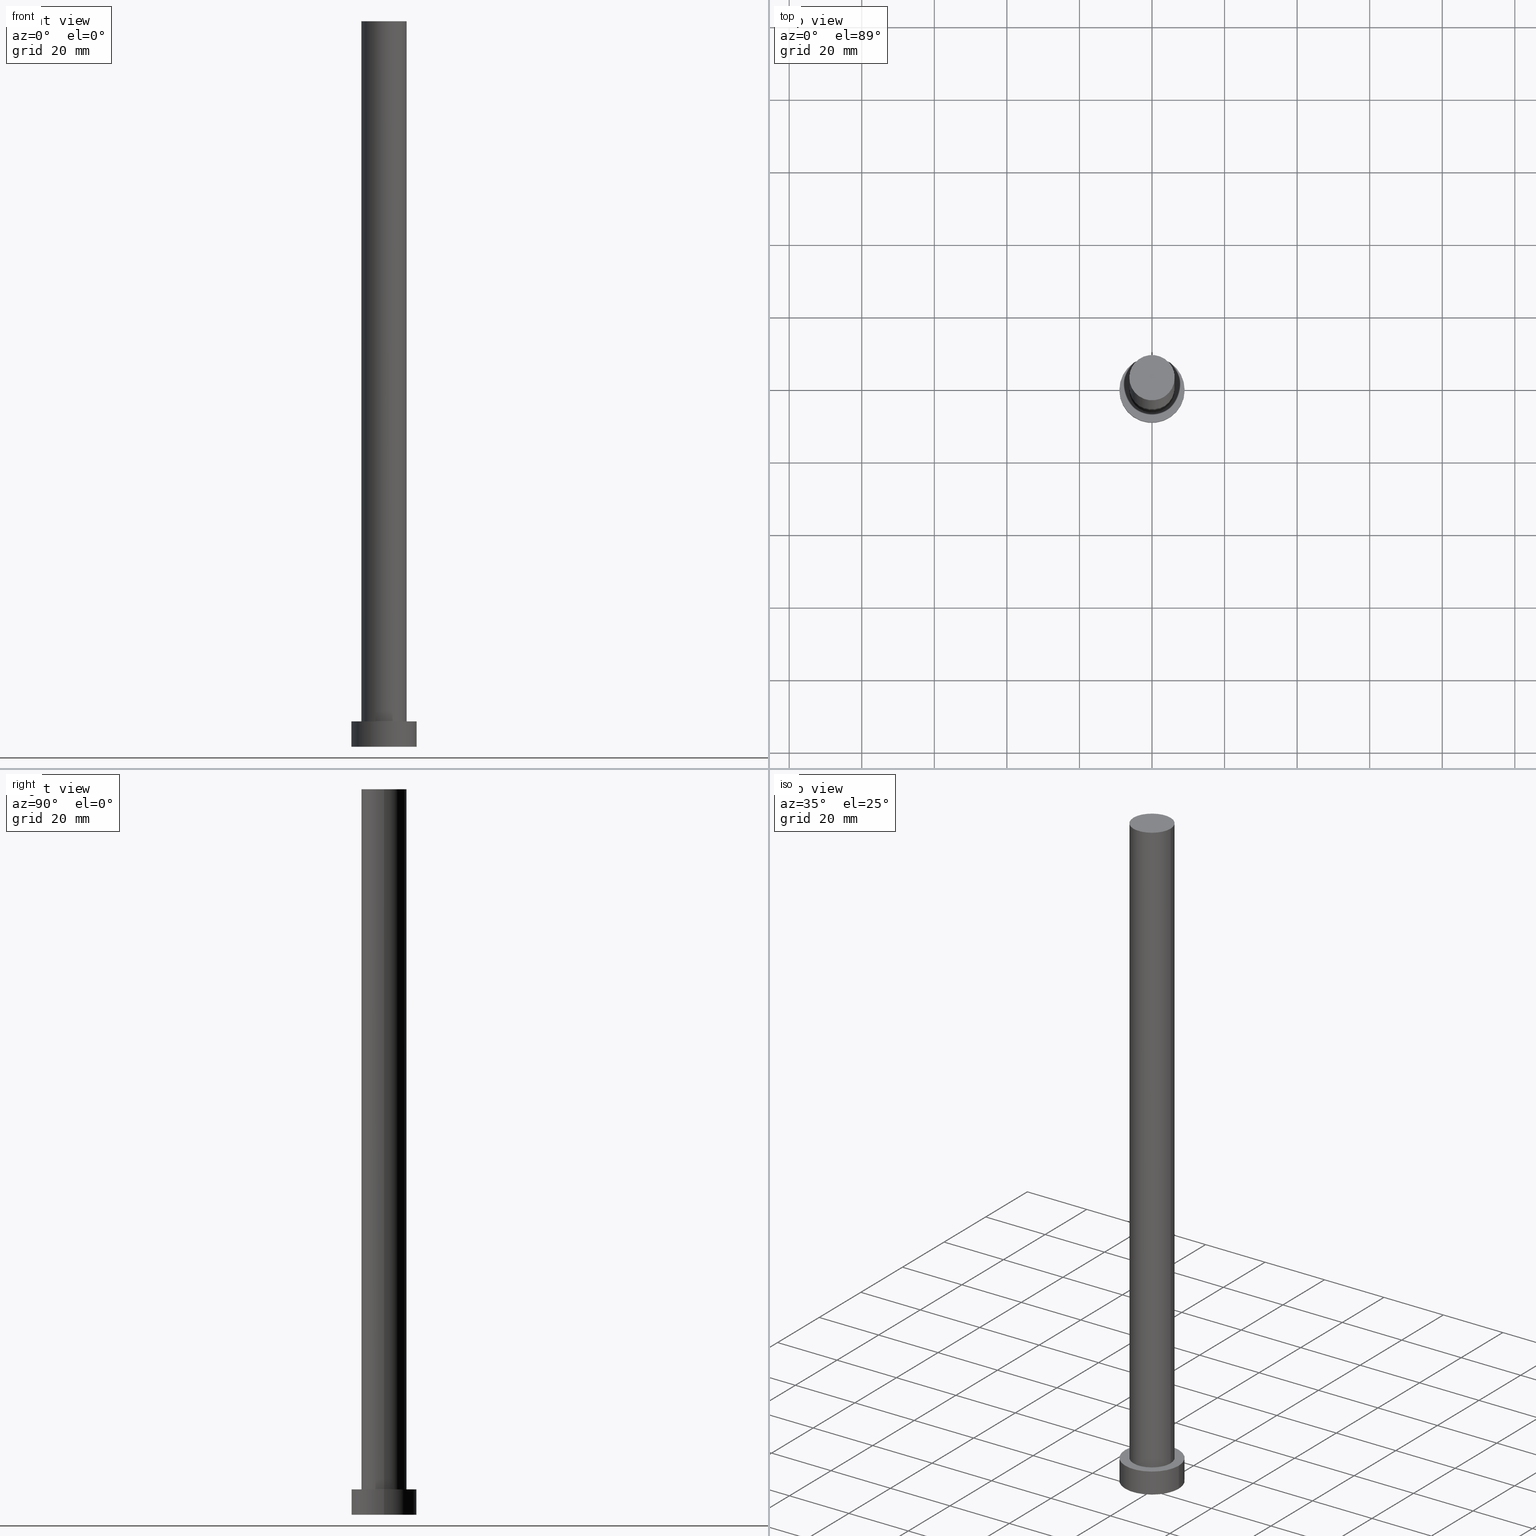
[diagram: canonical four-view strip — front | top / right | iso, engineering-drawing reading convention]
A machine part, canonical four-view strip (front | top / right | iso — engineering-drawing reading convention). The complete STEP part file that produces these views, byte-faithful:
ISO-10303-21;
HEADER;
FILE_DESCRIPTION (( 'STEP AP203' ),
    '1' );
FILE_NAME ('ea4b.STEP',
    '2026-02-06T12:36:17',
    ( '' ),
    ( '' ),
    'SwSTEP 2.0',
    'SolidWorks 2019',
    '' );
FILE_SCHEMA (( 'CONFIG_CONTROL_DESIGN' ));
ENDSEC;

DATA;
#1 = DIRECTION ( 'NONE',  ( -1.000000000000000000, 0.000000000000000000, 0.000000000000000000 ) ) ;
#2 = AXIS2_PLACEMENT_3D ( 'NONE', #86, #212, #1 ) ;
#3 = CALENDAR_DATE ( 2026, 6, 2 ) ;
#4 = DATE_AND_TIME ( #22, #191 ) ;
#5 =( NAMED_UNIT ( * ) SI_UNIT ( $, .STERADIAN. ) SOLID_ANGLE_UNIT ( ) );
#6 = CC_DESIGN_APPROVAL ( #163, ( #246 ) ) ;
#7 = EDGE_CURVE ( 'NONE', #244, #165, #35, .T. ) ;
#8 = APPROVAL_DATE_TIME ( #75, #64 ) ;
#9 = EDGE_LOOP ( 'NONE', ( #183, #142 ) ) ;
#10 = CIRCLE ( 'NONE', #42, 6.250000000000000000 ) ;
#11 = ORIENTED_EDGE ( 'NONE', *, *, #158, .T. ) ;
#12 = ORIENTED_EDGE ( 'NONE', *, *, #54, .T. ) ;
#13 = CARTESIAN_POINT ( 'NONE',  ( 0.000000000000000000, 0.000000000000000000, 0.000000000000000000 ) ) ;
#14 = DIRECTION ( 'NONE',  ( -0.000000000000000000, -0.000000000000000000, -1.000000000000000000 ) ) ;
#15 = DIRECTION ( 'NONE',  ( 0.000000000000000000, 0.000000000000000000, 1.000000000000000000 ) ) ;
#16 = PRODUCT_DEFINITION ( 'NEZN�M�', '', #243, #249 ) ;
#17 = CYLINDRICAL_SURFACE ( 'NONE', #30, 9.000000000000000000 ) ;
#18 = DIRECTION ( 'NONE',  ( -1.000000000000000000, 0.000000000000000000, 0.000000000000000000 ) ) ;
#19 = DIRECTION ( 'NONE',  ( 0.000000000000000000, 0.000000000000000000, 1.000000000000000000 ) ) ;
#20 = AXIS2_PLACEMENT_3D ( 'NONE', #69, #84, #33 ) ;
#21 = AXIS2_PLACEMENT_3D ( 'NONE', #32, #72, #155 ) ;
#22 = CALENDAR_DATE ( 2026, 6, 2 ) ;
#23 = CARTESIAN_POINT ( 'NONE',  ( 6.250000000000000000, 7.654042494670957606E-16, 200.0000000000000000 ) ) ;
#24 = PRODUCT_DEFINITION_SHAPE ( 'NONE', 'NONE',  #16 ) ;
#25 = CC_DESIGN_SECURITY_CLASSIFICATION ( #246, ( #243 ) ) ;
#26 = AXIS2_PLACEMENT_3D ( 'NONE', #13, #119, #79 ) ;
#27 = VECTOR ( 'NONE', #253, 1000.000000000000000 ) ;
#28 = VERTEX_POINT ( 'NONE', #123 ) ;
#29 = VERTEX_POINT ( 'NONE', #205 ) ;
#30 = AXIS2_PLACEMENT_3D ( 'NONE', #47, #148, #173 ) ;
#31 = ORIENTED_EDGE ( 'NONE', *, *, #207, .F. ) ;
#32 = CARTESIAN_POINT ( 'NONE',  ( 0.000000000000000000, 0.000000000000000000, 7.000000000000000000 ) ) ;
#33 = DIRECTION ( 'NONE',  ( 1.000000000000000000, 0.000000000000000000, 0.000000000000000000 ) ) ;
#34 = CARTESIAN_POINT ( 'NONE',  ( 0.000000000000000000, 0.000000000000000000, 200.0000000000000000 ) ) ;
#35 = CIRCLE ( 'NONE', #26, 9.000000000000000000 ) ;
#36 = FACE_OUTER_BOUND ( 'NONE', #206, .T. ) ;
#37 = CARTESIAN_POINT ( 'NONE',  ( 9.000000000000000000, 1.102182119232617714E-15, 7.000000000000000000 ) ) ;
#38 = APPLICATION_PROTOCOL_DEFINITION ( 'international standard', 'config_control_design', 1994, #187 ) ;
#39 = PERSON_AND_ORGANIZATION ( #122, #58 ) ;
#40 = PERSON_AND_ORGANIZATION ( #122, #58 ) ;
#41 = APPROVAL_ROLE ( '' ) ;
#42 = AXIS2_PLACEMENT_3D ( 'NONE', #85, #71, #188 ) ;
#43 = ORIENTED_EDGE ( 'NONE', *, *, #241, .F. ) ;
#44 = ORIENTED_EDGE ( 'NONE', *, *, #145, .T. ) ;
#45 = EDGE_LOOP ( 'NONE', ( #229, #102 ) ) ;
#46 = CARTESIAN_POINT ( 'NONE',  ( 0.000000000000000000, 0.000000000000000000, 7.000000000000000000 ) ) ;
#47 = CARTESIAN_POINT ( 'NONE',  ( 0.000000000000000000, 0.000000000000000000, 7.000000000000000000 ) ) ;
#48 = LOCAL_TIME ( 13, 36, 17.00000000000000000, #159 ) ;
#49 = CARTESIAN_POINT ( 'NONE',  ( -6.250000000000000000, 0.000000000000000000, 200.0000000000000000 ) ) ;
#50 = DIRECTION ( 'NONE',  ( 0.000000000000000000, 0.000000000000000000, 1.000000000000000000 ) ) ;
#51 = DIRECTION ( 'NONE',  ( 0.000000000000000000, 0.000000000000000000, 1.000000000000000000 ) ) ;
#52 = CALENDAR_DATE ( 2026, 6, 2 ) ;
#53 = PERSON_AND_ORGANIZATION_ROLE ( 'design_supplier' ) ;
#54 = EDGE_CURVE ( 'NONE', #77, #248, #170, .T. ) ;
#55 = CARTESIAN_POINT ( 'NONE',  ( 9.000000000000000000, 1.102182119232617714E-15, 0.000000000000000000 ) ) ;
#56 = LOCAL_TIME ( 13, 36, 17.00000000000000000, #181 ) ;
#57 = AXIS2_PLACEMENT_3D ( 'NONE', #128, #112, #231 ) ;
#58 = ORGANIZATION ( 'NEUR�EN�', 'NEUR�EN�', '' ) ;
#59 = PERSON_AND_ORGANIZATION ( #122, #58 ) ;
#60 = DATE_AND_TIME ( #3, #48 ) ;
#61 = APPROVAL_PERSON_ORGANIZATION ( #59, #163, #203 ) ;
#62 = ORIENTED_EDGE ( 'NONE', *, *, #182, .F. ) ;
#63 = EDGE_CURVE ( 'NONE', #204, #29, #93, .T. ) ;
#64 = APPROVAL ( #132, 'NEUR�EN�' ) ;
#65 = EDGE_LOOP ( 'NONE', ( #247, #143, #164, #44 ) ) ;
#66 = CIRCLE ( 'NONE', #214, 6.250000000000000000 ) ;
#67 = ORIENTED_EDGE ( 'NONE', *, *, #177, .T. ) ;
#68 = FACE_OUTER_BOUND ( 'NONE', #161, .T. ) ;
#69 = CARTESIAN_POINT ( 'NONE',  ( 0.000000000000000000, 0.000000000000000000, 0.000000000000000000 ) ) ;
#70 = PLANE ( 'NONE',  #115 ) ;
#71 = DIRECTION ( 'NONE',  ( 0.000000000000000000, 0.000000000000000000, 1.000000000000000000 ) ) ;
#72 = DIRECTION ( 'NONE',  ( 0.000000000000000000, 0.000000000000000000, 1.000000000000000000 ) ) ;
#73 = APPROVAL_ROLE ( '' ) ;
#74 = DIRECTION ( 'NONE',  ( -0.000000000000000000, -0.000000000000000000, -1.000000000000000000 ) ) ;
#75 = DATE_AND_TIME ( #137, #144 ) ;
#76 = APPROVAL_DATE_TIME ( #184, #163 ) ;
#77 = VERTEX_POINT ( 'NONE', #232 ) ;
#78 = ADVANCED_FACE ( 'NONE', ( #90 ), #17, .T. ) ;
#79 = DIRECTION ( 'NONE',  ( 1.000000000000000000, 0.000000000000000000, 0.000000000000000000 ) ) ;
#80 = EDGE_LOOP ( 'NONE', ( #101, #121, #180, #228 ) ) ;
#81 = ORIENTED_EDGE ( 'NONE', *, *, #182, .T. ) ;
#82 = ADVANCED_BREP_SHAPE_REPRESENTATION ( 'ea4b', ( #166, #252 ), #94 ) ;
#83 = ORIENTED_EDGE ( 'NONE', *, *, #177, .F. ) ;
#84 = DIRECTION ( 'NONE',  ( 0.000000000000000000, 0.000000000000000000, 1.000000000000000000 ) ) ;
#85 = CARTESIAN_POINT ( 'NONE',  ( 0.000000000000000000, 0.000000000000000000, 200.0000000000000000 ) ) ;
#86 = CARTESIAN_POINT ( 'NONE',  ( 0.000000000000000000, 0.000000000000000000, 200.0000000000000000 ) ) ;
#87 = ADVANCED_FACE ( 'NONE', ( #133 ), #190, .T. ) ;
#88 = DIRECTION ( 'NONE',  ( 1.000000000000000000, 0.000000000000000000, 0.000000000000000000 ) ) ;
#89 = APPROVAL ( #139, 'NEUR�EN�' ) ;
#90 = FACE_OUTER_BOUND ( 'NONE', #80, .T. ) ;
#91 = ADVANCED_FACE ( 'NONE', ( #210 ), #215, .F. ) ;
#92 = DIRECTION ( 'NONE',  ( -0.000000000000000000, -0.000000000000000000, -1.000000000000000000 ) ) ;
#93 = CIRCLE ( 'NONE', #57, 6.250000000000000000 ) ;
#94 =( GEOMETRIC_REPRESENTATION_CONTEXT ( 3 ) GLOBAL_UNCERTAINTY_ASSIGNED_CONTEXT ( ( #230 ) ) GLOBAL_UNIT_ASSIGNED_CONTEXT ( ( #114, #98, #5 ) ) REPRESENTATION_CONTEXT ( 'NONE', 'WORKASPACE' ) );
#95 = DIRECTION ( 'NONE',  ( 1.000000000000000000, 0.000000000000000000, 0.000000000000000000 ) ) ;
#96 = PERSON_AND_ORGANIZATION_ROLE ( 'creator' ) ;
#97 = APPLICATION_PROTOCOL_DEFINITION ( 'international standard', 'config_control_design', 1994, #240 ) ;
#98 =( NAMED_UNIT ( * ) PLANE_ANGLE_UNIT ( ) SI_UNIT ( $, .RADIAN. ) );
#99 = APPROVAL_PERSON_ORGANIZATION ( #156, #89, #73 ) ;
#100 = CIRCLE ( 'NONE', #20, 9.000000000000000000 ) ;
#101 = ORIENTED_EDGE ( 'NONE', *, *, #186, .F. ) ;
#102 = ORIENTED_EDGE ( 'NONE', *, *, #7, .F. ) ;
#103 = CARTESIAN_POINT ( 'NONE',  ( 0.000000000000000000, 0.000000000000000000, 7.000000000000000000 ) ) ;
#104 = ORIENTED_EDGE ( 'NONE', *, *, #186, .T. ) ;
#105 = CIRCLE ( 'NONE', #209, 9.000000000000000000 ) ;
#106 = DIRECTION ( 'NONE',  ( 1.000000000000000000, 0.000000000000000000, 0.000000000000000000 ) ) ;
#107 = CC_DESIGN_DATE_AND_TIME_ASSIGNMENT ( #4, #239, ( #246 ) ) ;
#108 = FACE_OUTER_BOUND ( 'NONE', #162, .T. ) ;
#109 = LINE ( 'NONE', #235, #27 ) ;
#110 = DIRECTION ( 'NONE',  ( -1.000000000000000000, 0.000000000000000000, 0.000000000000000000 ) ) ;
#111 = CC_DESIGN_PERSON_AND_ORGANIZATION_ASSIGNMENT ( #221, #53, ( #243 ) ) ;
#112 = DIRECTION ( 'NONE',  ( 0.000000000000000000, 0.000000000000000000, 1.000000000000000000 ) ) ;
#113 = CLOSED_SHELL ( 'NONE', ( #118, #87, #78, #195, #91, #200, #140 ) ) ;
#114 =( LENGTH_UNIT ( ) NAMED_UNIT ( * ) SI_UNIT ( .MILLI., .METRE. ) );
#115 = AXIS2_PLACEMENT_3D ( 'NONE', #251, #50, #234 ) ;
#116 = PERSON_AND_ORGANIZATION_ROLE ( 'classification_officer' ) ;
#117 = APPROVAL_STATUS ( 'not_yet_approved' ) ;
#118 = ADVANCED_FACE ( 'NONE', ( #36 ), #152, .T. ) ;
#119 = DIRECTION ( 'NONE',  ( 0.000000000000000000, 0.000000000000000000, 1.000000000000000000 ) ) ;
#120 = CC_DESIGN_APPROVAL ( #89, ( #243 ) ) ;
#121 = ORIENTED_EDGE ( 'NONE', *, *, #54, .F. ) ;
#122 = PERSON ( 'NEUR�EN�', 'NEUR�EN�', 'NEUR�EN�', ('NEUR�EN�'), ('NEUR�EN�'), ('NEUR�EN�') ) ;
#123 = CARTESIAN_POINT ( 'NONE',  ( 6.250000000000000000, 7.654042494670957606E-16, 7.000000000000000000 ) ) ;
#124 = AXIS2_PLACEMENT_3D ( 'NONE', #189, #15, #233 ) ;
#125 = APPROVAL_PERSON_ORGANIZATION ( #201, #64, #41 ) ;
#126 = CARTESIAN_POINT ( 'NONE',  ( 0.000000000000000000, 0.000000000000000000, 7.000000000000000000 ) ) ;
#127 = DIRECTION ( 'NONE',  ( 1.000000000000000000, 0.000000000000000000, -0.000000000000000000 ) ) ;
#128 = CARTESIAN_POINT ( 'NONE',  ( 0.000000000000000000, 0.000000000000000000, 200.0000000000000000 ) ) ;
#129 = CC_DESIGN_APPROVAL ( #64, ( #16 ) ) ;
#130 = AXIS2_PLACEMENT_3D ( 'NONE', #103, #131, #216 ) ;
#131 = DIRECTION ( 'NONE',  ( 0.000000000000000000, 0.000000000000000000, 1.000000000000000000 ) ) ;
#132 = APPROVAL_STATUS ( 'not_yet_approved' ) ;
#133 = FACE_OUTER_BOUND ( 'NONE', #208, .T. ) ;
#134 = DATE_TIME_ROLE ( 'creation_date' ) ;
#135 = CARTESIAN_POINT ( 'NONE',  ( -6.250000000000000000, 0.000000000000000000, 200.0000000000000000 ) ) ;
#136 = PERSON_AND_ORGANIZATION ( #122, #58 ) ;
#137 = CALENDAR_DATE ( 2026, 6, 2 ) ;
#138 = PERSON_AND_ORGANIZATION_ROLE ( 'creator' ) ;
#139 = APPROVAL_STATUS ( 'not_yet_approved' ) ;
#140 = ADVANCED_FACE ( 'NONE', ( #108 ), #196, .T. ) ;
#141 = AXIS2_PLACEMENT_3D ( 'NONE', #171, #19, #127 ) ;
#142 = ORIENTED_EDGE ( 'NONE', *, *, #158, .F. ) ;
#143 = ORIENTED_EDGE ( 'NONE', *, *, #63, .F. ) ;
#144 = LOCAL_TIME ( 13, 36, 17.00000000000000000, #174 ) ;
#145 = EDGE_CURVE ( 'NONE', #226, #28, #66, .T. ) ;
#146 = CALENDAR_DATE ( 2026, 6, 2 ) ;
#147 = ORIENTED_EDGE ( 'NONE', *, *, #255, .T. ) ;
#148 = DIRECTION ( 'NONE',  ( -0.000000000000000000, -0.000000000000000000, -1.000000000000000000 ) ) ;
#149 = EDGE_CURVE ( 'NONE', #165, #244, #100, .T. ) ;
#150 = VECTOR ( 'NONE', #92, 1000.000000000000000 ) ;
#151 = CC_DESIGN_PERSON_AND_ORGANIZATION_ASSIGNMENT ( #136, #218, ( #227 ) ) ;
#152 = CYLINDRICAL_SURFACE ( 'NONE', #2, 6.250000000000000000 ) ;
#153 = FACE_OUTER_BOUND ( 'NONE', #65, .T. ) ;
#154 = FACE_BOUND ( 'NONE', #9, .T. ) ;
#155 = DIRECTION ( 'NONE',  ( 1.000000000000000000, 0.000000000000000000, 0.000000000000000000 ) ) ;
#156 = PERSON_AND_ORGANIZATION ( #122, #58 ) ;
#157 = CARTESIAN_POINT ( 'NONE',  ( -6.250000000000000000, 0.000000000000000000, 7.000000000000000000 ) ) ;
#158 = EDGE_CURVE ( 'NONE', #28, #226, #222, .T. ) ;
#159 = COORDINATED_UNIVERSAL_TIME_OFFSET ( 1, 0, .AHEAD. ) ;
#160 = LOCAL_TIME ( 13, 36, 17.00000000000000000, #236 ) ;
#161 = EDGE_LOOP ( 'NONE', ( #12, #81 ) ) ;
#162 = EDGE_LOOP ( 'NONE', ( #224, #67 ) ) ;
#163 = APPROVAL ( #117, 'NEUR�EN�' ) ;
#164 = ORIENTED_EDGE ( 'NONE', *, *, #241, .T. ) ;
#165 = VERTEX_POINT ( 'NONE', #194 ) ;
#166 = MANIFOLD_SOLID_BREP ( 'P�idat vysunut�m3', #113 ) ;
#167 = CYLINDRICAL_SURFACE ( 'NONE', #193, 6.250000000000000000 ) ;
#168 = SHAPE_DEFINITION_REPRESENTATION ( #24, #82 ) ;
#169 = DIRECTION ( 'NONE',  ( 0.000000000000000000, 0.000000000000000000, 1.000000000000000000 ) ) ;
#170 = CIRCLE ( 'NONE', #130, 9.000000000000000000 ) ;
#171 = CARTESIAN_POINT ( 'NONE',  ( 0.000000000000000000, 0.000000000000000000, 0.000000000000000000 ) ) ;
#172 = DIRECTION ( 'NONE',  ( -0.000000000000000000, -0.000000000000000000, -1.000000000000000000 ) ) ;
#173 = DIRECTION ( 'NONE',  ( -1.000000000000000000, 0.000000000000000000, 0.000000000000000000 ) ) ;
#174 = COORDINATED_UNIVERSAL_TIME_OFFSET ( 1, 0, .AHEAD. ) ;
#175 = LINE ( 'NONE', #23, #223 ) ;
#176 = MECHANICAL_CONTEXT ( 'NONE', #240, 'mechanical' ) ;
#177 = EDGE_CURVE ( 'NONE', #29, #204, #10, .T. ) ;
#178 = DIRECTION ( 'NONE',  ( -0.000000000000000000, -0.000000000000000000, -1.000000000000000000 ) ) ;
#179 = CC_DESIGN_DATE_AND_TIME_ASSIGNMENT ( #60, #134, ( #16 ) ) ;
#180 = ORIENTED_EDGE ( 'NONE', *, *, #207, .T. ) ;
#181 = COORDINATED_UNIVERSAL_TIME_OFFSET ( 1, 0, .AHEAD. ) ;
#182 = EDGE_CURVE ( 'NONE', #248, #77, #105, .T. ) ;
#183 = ORIENTED_EDGE ( 'NONE', *, *, #145, .F. ) ;
#184 = DATE_AND_TIME ( #146, #56 ) ;
#185 = VECTOR ( 'NONE', #74, 1000.000000000000000 ) ;
#186 = EDGE_CURVE ( 'NONE', #248, #244, #109, .T. ) ;
#187 = APPLICATION_CONTEXT ( 'configuration controlled 3d designs of mechanical parts and assemblies' ) ;
#188 = DIRECTION ( 'NONE',  ( 1.000000000000000000, 0.000000000000000000, 0.000000000000000000 ) ) ;
#189 = CARTESIAN_POINT ( 'NONE',  ( 0.000000000000000000, 0.000000000000000000, 200.0000000000000000 ) ) ;
#190 = CYLINDRICAL_SURFACE ( 'NONE', #192, 9.000000000000000000 ) ;
#191 = LOCAL_TIME ( 13, 36, 17.00000000000000000, #202 ) ;
#192 = AXIS2_PLACEMENT_3D ( 'NONE', #46, #172, #18 ) ;
#193 = AXIS2_PLACEMENT_3D ( 'NONE', #34, #14, #110 ) ;
#194 = CARTESIAN_POINT ( 'NONE',  ( -9.000000000000000000, 0.000000000000000000, 0.000000000000000000 ) ) ;
#195 = ADVANCED_FACE ( 'NONE', ( #154, #68 ), #70, .T. ) ;
#196 = PLANE ( 'NONE',  #124 ) ;
#197 = CC_DESIGN_PERSON_AND_ORGANIZATION_ASSIGNMENT ( #39, #116, ( #246 ) ) ;
#198 = CARTESIAN_POINT ( 'NONE',  ( 0.000000000000000000, 0.000000000000000000, 0.000000000000000000 ) ) ;
#199 = SECURITY_CLASSIFICATION_LEVEL ( 'unclassified' ) ;
#200 = ADVANCED_FACE ( 'NONE', ( #153 ), #167, .T. ) ;
#201 = PERSON_AND_ORGANIZATION ( #122, #58 ) ;
#202 = COORDINATED_UNIVERSAL_TIME_OFFSET ( 1, 0, .AHEAD. ) ;
#203 = APPROVAL_ROLE ( '' ) ;
#204 = VERTEX_POINT ( 'NONE', #49 ) ;
#205 = CARTESIAN_POINT ( 'NONE',  ( 6.250000000000000000, 7.654042494670957606E-16, 200.0000000000000000 ) ) ;
#206 = EDGE_LOOP ( 'NONE', ( #83, #147, #11, #43 ) ) ;
#207 = EDGE_CURVE ( 'NONE', #77, #165, #250, .T. ) ;
#208 = EDGE_LOOP ( 'NONE', ( #62, #104, #245, #31 ) ) ;
#209 = AXIS2_PLACEMENT_3D ( 'NONE', #213, #169, #106 ) ;
#210 = FACE_OUTER_BOUND ( 'NONE', #45, .T. ) ;
#211 = CC_DESIGN_PERSON_AND_ORGANIZATION_ASSIGNMENT ( #40, #138, ( #243 ) ) ;
#212 = DIRECTION ( 'NONE',  ( -0.000000000000000000, -0.000000000000000000, -1.000000000000000000 ) ) ;
#213 = CARTESIAN_POINT ( 'NONE',  ( 0.000000000000000000, 0.000000000000000000, 7.000000000000000000 ) ) ;
#214 = AXIS2_PLACEMENT_3D ( 'NONE', #126, #254, #88 ) ;
#215 = PLANE ( 'NONE',  #141 ) ;
#216 = DIRECTION ( 'NONE',  ( 1.000000000000000000, 0.000000000000000000, 0.000000000000000000 ) ) ;
#217 = DATE_AND_TIME ( #52, #160 ) ;
#218 = PERSON_AND_ORGANIZATION_ROLE ( 'design_owner' ) ;
#219 = PERSON_AND_ORGANIZATION ( #122, #58 ) ;
#220 = LINE ( 'NONE', #135, #185 ) ;
#221 = PERSON_AND_ORGANIZATION ( #122, #58 ) ;
#222 = CIRCLE ( 'NONE', #21, 6.250000000000000000 ) ;
#223 = VECTOR ( 'NONE', #178, 1000.000000000000000 ) ;
#224 = ORIENTED_EDGE ( 'NONE', *, *, #63, .T. ) ;
#225 = CC_DESIGN_PERSON_AND_ORGANIZATION_ASSIGNMENT ( #219, #96, ( #16 ) ) ;
#226 = VERTEX_POINT ( 'NONE', #157 ) ;
#227 = PRODUCT ( 'ea4b', 'ea4b', '', ( #176 ) ) ;
#228 = ORIENTED_EDGE ( 'NONE', *, *, #149, .T. ) ;
#229 = ORIENTED_EDGE ( 'NONE', *, *, #149, .F. ) ;
#230 = UNCERTAINTY_MEASURE_WITH_UNIT (LENGTH_MEASURE( 1.000000000000000082E-05 ), #114, 'distance_accuracy_value', 'NONE');
#231 = DIRECTION ( 'NONE',  ( 1.000000000000000000, 0.000000000000000000, 0.000000000000000000 ) ) ;
#232 = CARTESIAN_POINT ( 'NONE',  ( -9.000000000000000000, 0.000000000000000000, 7.000000000000000000 ) ) ;
#233 = DIRECTION ( 'NONE',  ( 1.000000000000000000, 0.000000000000000000, -0.000000000000000000 ) ) ;
#234 = DIRECTION ( 'NONE',  ( 1.000000000000000000, 0.000000000000000000, -0.000000000000000000 ) ) ;
#235 = CARTESIAN_POINT ( 'NONE',  ( 9.000000000000000000, 1.102182119232617714E-15, 7.000000000000000000 ) ) ;
#236 = COORDINATED_UNIVERSAL_TIME_OFFSET ( 1, 0, .AHEAD. ) ;
#237 = APPROVAL_DATE_TIME ( #217, #89 ) ;
#238 = CARTESIAN_POINT ( 'NONE',  ( -9.000000000000000000, 0.000000000000000000, 7.000000000000000000 ) ) ;
#239 = DATE_TIME_ROLE ( 'classification_date' ) ;
#240 = APPLICATION_CONTEXT ( 'configuration controlled 3d designs of mechanical parts and assemblies' ) ;
#241 = EDGE_CURVE ( 'NONE', #204, #226, #220, .T. ) ;
#242 = PRODUCT_RELATED_PRODUCT_CATEGORY ( 'detail', '', ( #227 ) ) ;
#243 = PRODUCT_DEFINITION_FORMATION_WITH_SPECIFIED_SOURCE ( 'LIBOVOLN�', '', #227, .NOT_KNOWN. ) ;
#244 = VERTEX_POINT ( 'NONE', #55 ) ;
#245 = ORIENTED_EDGE ( 'NONE', *, *, #7, .T. ) ;
#246 = SECURITY_CLASSIFICATION ( '', '', #199 ) ;
#247 = ORIENTED_EDGE ( 'NONE', *, *, #255, .F. ) ;
#248 = VERTEX_POINT ( 'NONE', #37 ) ;
#249 = DESIGN_CONTEXT ( 'detailed design', #187, 'design' ) ;
#250 = LINE ( 'NONE', #238, #150 ) ;
#251 = CARTESIAN_POINT ( 'NONE',  ( 0.000000000000000000, 0.000000000000000000, 7.000000000000000000 ) ) ;
#252 = AXIS2_PLACEMENT_3D ( 'NONE', #198, #51, #95 ) ;
#253 = DIRECTION ( 'NONE',  ( -0.000000000000000000, -0.000000000000000000, -1.000000000000000000 ) ) ;
#254 = DIRECTION ( 'NONE',  ( 0.000000000000000000, 0.000000000000000000, 1.000000000000000000 ) ) ;
#255 = EDGE_CURVE ( 'NONE', #29, #28, #175, .T. ) ;
ENDSEC;
END-ISO-10303-21;
